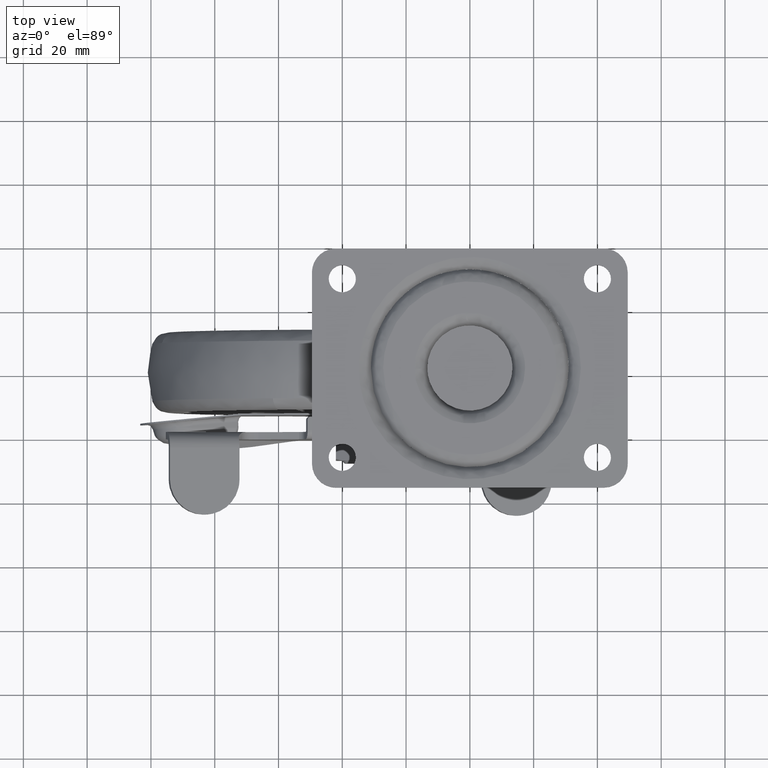
[diagram: clean part render]
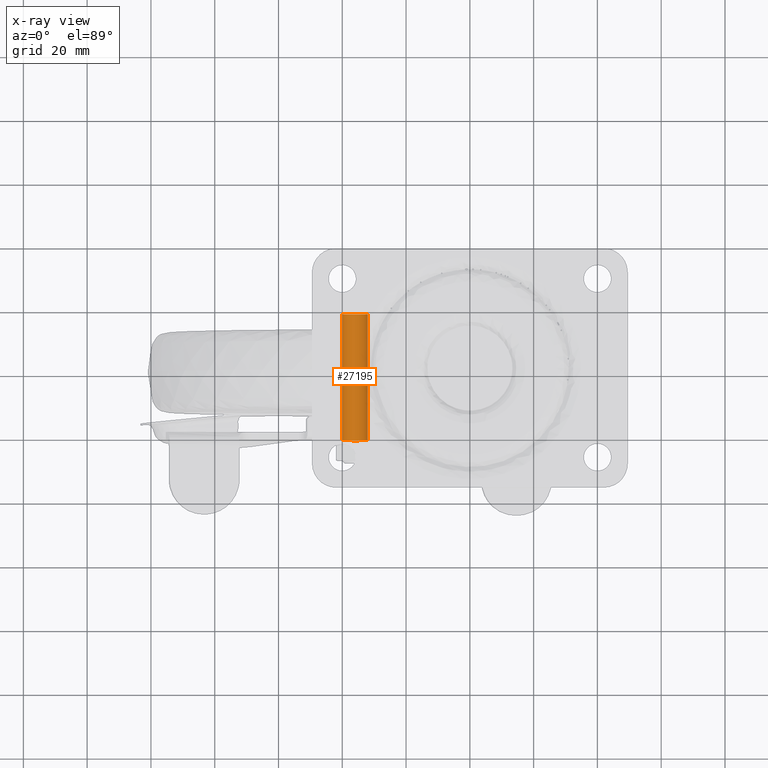
[diagram: x-ray — body ghosted, one internal face saturated and labeled with its STEP entity id]
A machine part, top view, then the same camera in x-ray: the body is ghosted and one INTERNAL B-rep face — a face not visible from any outside direction — is saturated and labeled: STEP entity #27195.
In plain terms, the highlighted face is a freeform B-spline surface patch.
Its self-contained STEP definition (entity closure, byte-faithful):
#27093=CARTESIAN_POINT('',(-32.027961894545342,-22.149732213149026,-84.527849061372976));
#27094=CARTESIAN_POINT('',(-32.014449538205589,-22.149732213149019,-84.641527085448089));
#27095=CARTESIAN_POINT('',(-32.007460806312537,-22.149732213149019,-84.755791841860571));
#27096=CARTESIAN_POINT('',(-31.763266648173111,-22.149732213149022,-88.748331035548034));
#27097=CARTESIAN_POINT('',(-35.755805841860571,-22.149732213149019,-88.992525193687456));
#27098=CARTESIAN_POINT('',(-39.748345035548034,-22.149732213149022,-89.236719351826878));
#27099=CARTESIAN_POINT('',(-39.992539193687463,-22.149732213149019,-85.244180158139415));
#27100=CARTESIAN_POINT('',(-32.027961894545342,19.375347344438453,-84.527849061372976));
#27101=CARTESIAN_POINT('',(-32.014449538205589,19.375347344438449,-84.641527085448089));
#27102=CARTESIAN_POINT('',(-32.007460806312537,19.375347344438449,-84.755791841860571));
#27103=CARTESIAN_POINT('',(-31.763266648173111,19.375347344438456,-88.748331035548034));
#27104=CARTESIAN_POINT('',(-35.755805841860571,19.375347344438449,-88.992525193687456));
#27105=CARTESIAN_POINT('',(-39.748345035548034,19.375347344438456,-89.236719351826878));
#27106=CARTESIAN_POINT('',(-39.992539193687463,19.375347344438449,-85.244180158139415));
#27114=(BOUNDED_SURFACE()B_SPLINE_SURFACE(2,1,((#27093,#27100),(#27094,#27101),(#27095,#27102),(#27096,#27103),(#27097,#27104),(#27098,#27105),(#27099,#27106)),.UNSPECIFIED.,.F.,.F.,.U.)B_SPLINE_SURFACE_WITH_KNOTS((3,2,2,3),(2,2),(0.0,0.265096679918781,6.892513677888295,13.519930675857809),(0.0,41.525079557587482),.UNSPECIFIED.)GEOMETRIC_REPRESENTATION_ITEM()RATIONAL_B_SPLINE_SURFACE(((0.977505800795127,0.977505800795127),(0.988284271247462,0.988284271247462),(1.0,1.0),(0.707106781186548,0.707106781186548),(1.0,1.0),(0.707106781186548,0.707106781186548),(1.0,1.0)))REPRESENTATION_ITEM('')SURFACE());
#27115=CARTESIAN_POINT('',(-32.027961894548120,-21.161628000000000,-84.527849061349542));
#27116=VERTEX_POINT('',#27115);
#27117=CARTESIAN_POINT('',(-36.0,-21.161628000000000,-88.999986000000007));
#27118=VERTEX_POINT('',#27117);
#27119=CARTESIAN_POINT('',(-32.027961894548113,-21.161627999999993,-84.527849061349542));
#27120=CARTESIAN_POINT('',(-32.000000000000007,-21.161628000000000,-84.763089521368656));
#27121=CARTESIAN_POINT('',(-32.0,-21.161628000000000,-84.999985999999993));
#27122=CARTESIAN_POINT('',(-31.999999999999996,-21.161628000000000,-88.999986000000007));
#27123=CARTESIAN_POINT('',(-36.0,-21.161628000000000,-88.999986000000007));
#27131=(BOUNDED_CURVE()B_SPLINE_CURVE(2,(#27119,#27120,#27121,#27122,#27123),.UNSPECIFIED.,.F.,.U.)B_SPLINE_CURVE_WITH_KNOTS((3,2,3),(0.229562473513651,0.250000000000000,0.500000000000000),.UNSPECIFIED.)CURVE()GEOMETRIC_REPRESENTATION_ITEM()RATIONAL_B_SPLINE_CURVE((0.956026754183978,0.976055948331312,1.0,0.707106781186548,1.0))REPRESENTATION_ITEM(''));
#27132=EDGE_CURVE('',#27116,#27118,#27131,.T.);
#27133=ORIENTED_EDGE('',*,*,#27132,.T.);
#27134=CARTESIAN_POINT('',(-39.992539193639359,-21.161627999999990,-85.244180158925815));
#27135=VERTEX_POINT('',#27134);
#27136=CARTESIAN_POINT('',(-36.0,-21.161628000000000,-88.999986000000007));
#27137=CARTESIAN_POINT('',(-39.762824266137713,-21.161627999999997,-88.999986000000007));
#27138=CARTESIAN_POINT('',(-39.992539193639352,-21.161627999999997,-85.244180158925815));
#27146=(BOUNDED_CURVE()B_SPLINE_CURVE(2,(#27136,#27137,#27138),.UNSPECIFIED.,.F.,.U.)B_SPLINE_CURVE_WITH_KNOTS((3,3),(0.500000000000000,0.739332962173997),.UNSPECIFIED.)CURVE()GEOMETRIC_REPRESENTATION_ITEM()RATIONAL_B_SPLINE_CURVE((1.0,0.719603993362799,0.976072041527526))REPRESENTATION_ITEM(''));
#27147=EDGE_CURVE('',#27118,#27135,#27146,.T.);
#27148=ORIENTED_EDGE('',*,*,#27147,.T.);
#27149=CARTESIAN_POINT('',(-39.992539193639367,18.362540525960700,-85.244180158925815));
#27150=VERTEX_POINT('',#27149);
#27151=CARTESIAN_POINT('',(-39.992539193639359,-21.161627999999990,-85.244180158925815));
#27152=CARTESIAN_POINT('',(-39.992539193639367,18.362540525960700,-85.244180158925815));
#27153=QUASI_UNIFORM_CURVE('',1,(#27151,#27152),.UNSPECIFIED.,.F.,.U.);
#27154=EDGE_CURVE('',#27135,#27150,#27153,.T.);
#27155=ORIENTED_EDGE('',*,*,#27154,.T.);
#27156=CARTESIAN_POINT('',(-36.0,18.362540525960700,-88.999986000000007));
#27157=VERTEX_POINT('',#27156);
#27158=CARTESIAN_POINT('',(-36.0,18.362540525960700,-88.999986000000007));
#27159=CARTESIAN_POINT('',(-39.762824266137713,18.362540525960711,-88.999986000000007));
#27160=CARTESIAN_POINT('',(-39.992539193639367,18.362540525960700,-85.244180158925815));
#27168=(BOUNDED_CURVE()B_SPLINE_CURVE(2,(#27158,#27159,#27160),.UNSPECIFIED.,.F.,.U.)B_SPLINE_CURVE_WITH_KNOTS((3,3),(0.500000000000000,0.739332962173997),.UNSPECIFIED.)CURVE()GEOMETRIC_REPRESENTATION_ITEM()RATIONAL_B_SPLINE_CURVE((1.0,0.719603993362799,0.976072041527526))REPRESENTATION_ITEM(''));
#27169=EDGE_CURVE('',#27157,#27150,#27168,.T.);
#27170=ORIENTED_EDGE('',*,*,#27169,.F.);
#27171=CARTESIAN_POINT('',(-32.027961894548113,18.362540525960700,-84.527849061349542));
#27172=VERTEX_POINT('',#27171);
#27173=CARTESIAN_POINT('',(-32.027961894548113,18.362540525960704,-84.527849061349542));
#27174=CARTESIAN_POINT('',(-32.0,18.362540525960704,-84.763089521368684));
#27175=CARTESIAN_POINT('',(-32.0,18.362540525960700,-84.999985999999993));
#27176=CARTESIAN_POINT('',(-31.999999999999996,18.362540525960707,-88.999986000000007));
#27177=CARTESIAN_POINT('',(-36.0,18.362540525960700,-88.999986000000007));
#27185=(BOUNDED_CURVE()B_SPLINE_CURVE(2,(#27173,#27174,#27175,#27176,#27177),.UNSPECIFIED.,.F.,.U.)B_SPLINE_CURVE_WITH_KNOTS((3,2,3),(0.229562473513651,0.250000000000000,0.500000000000000),.UNSPECIFIED.)CURVE()GEOMETRIC_REPRESENTATION_ITEM()RATIONAL_B_SPLINE_CURVE((0.956026754183979,0.976055948331312,1.0,0.707106781186548,1.0))REPRESENTATION_ITEM(''));
#27186=EDGE_CURVE('',#27172,#27157,#27185,.T.);
#27187=ORIENTED_EDGE('',*,*,#27186,.F.);
#27188=CARTESIAN_POINT('',(-32.027961894548120,-21.161628000000000,-84.527849061349542));
#27189=CARTESIAN_POINT('',(-32.027961894548113,18.362540525960700,-84.527849061349542));
#27190=QUASI_UNIFORM_CURVE('',1,(#27188,#27189),.UNSPECIFIED.,.F.,.U.);
#27191=EDGE_CURVE('',#27116,#27172,#27190,.T.);
#27192=ORIENTED_EDGE('',*,*,#27191,.F.);
#27193=EDGE_LOOP('',(#27133,#27148,#27155,#27170,#27187,#27192));
#27194=FACE_OUTER_BOUND('',#27193,.T.);
#27195=ADVANCED_FACE('',(#27194),#27114,.T.);